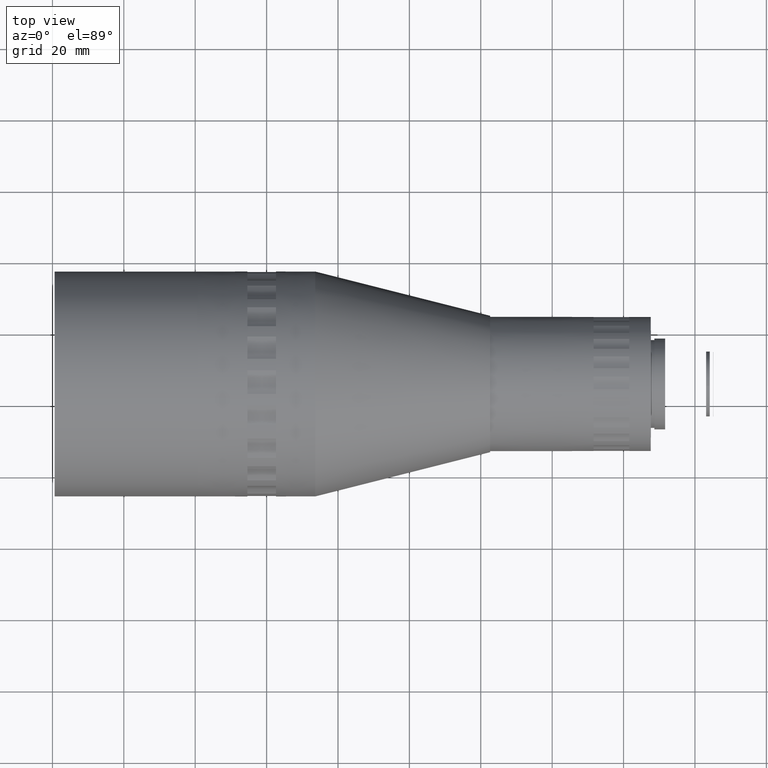
[diagram: clean part render]
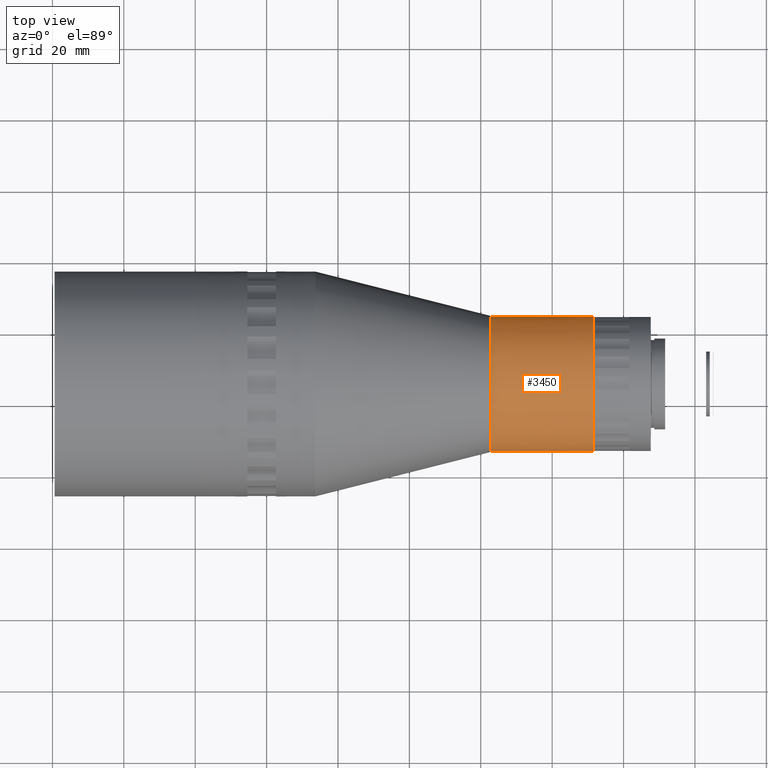
[diagram: same view with one face highlighted and labeled with its STEP entity id]
A machine part, top view. The second image highlights one B-rep face of the part: STEP entity #3450.
In plain terms, the highlighted conical surface has half-angle 0.025 deg.
Its self-contained STEP definition (entity closure, byte-faithful):
#181 = AXIS2_PLACEMENT_3D ( 'NONE', #2191, #3624, #1511 ) ;
#319 = ORIENTED_EDGE ( 'NONE', *, *, #2730, .F. ) ;
#472 = EDGE_LOOP ( 'NONE', ( #319 ) ) ;
#514 = CARTESIAN_POINT ( 'NONE',  ( 91.60730999507811134, -13.07537089778911366, -0.6039616615827261281 ) ) ;
#674 = CARTESIAN_POINT ( 'NONE',  ( 91.60730999507811134, 5.711987127917018015, -0.6039616615827261281 ) ) ;
#832 = FACE_OUTER_BOUND ( 'NONE', #472, .T. ) ;
#1158 = AXIS2_PLACEMENT_3D ( 'NONE', #4099, #3681, #1909 ) ;
#1511 = DIRECTION ( 'NONE',  ( 0.000000000000000000, -1.000000000000000000, 0.000000000000000000 ) ) ;
#1551 = EDGE_LOOP ( 'NONE', ( #3384 ) ) ;
#1909 = DIRECTION ( 'NONE',  ( 0.000000000000000000, -1.000000000000000000, 0.000000000000000000 ) ) ;
#1977 = VERTEX_POINT ( 'NONE', #3714 ) ;
#2191 = CARTESIAN_POINT ( 'NONE',  ( 62.63093621955190571, 5.711987127917014462, -0.6039616615827261281 ) ) ;
#2195 = CIRCLE ( 'NONE', #181, 18.79999999999999716 ) ;
#2283 = VERTEX_POINT ( 'NONE', #514 ) ;
#2676 = FACE_BOUND ( 'NONE', #1551, .T. ) ;
#2730 = EDGE_CURVE ( 'NONE', #1977, #1977, #2195, .T. ) ;
#2953 = CIRCLE ( 'NONE', #4075, 18.78735802570613345 ) ;
#3384 = ORIENTED_EDGE ( 'NONE', *, *, #4007, .T. ) ;
#3450 = ADVANCED_FACE ( 'NONE', ( #2676, #832 ), #4072, .T. ) ;
#3624 = DIRECTION ( 'NONE',  ( -1.000000000000000000, -1.226679102604723662E-16, -0.000000000000000000 ) ) ;
#3681 = DIRECTION ( 'NONE',  ( -1.000000000000000000, -1.226679102604723662E-16, -0.000000000000000000 ) ) ;
#3714 = CARTESIAN_POINT ( 'NONE',  ( 62.63093621955190571, -13.08801287208298092, -0.6039616615827261281 ) ) ;
#4007 = EDGE_CURVE ( 'NONE', #2283, #2283, #2953, .T. ) ;
#4072 = CONICAL_SURFACE ( 'NONE', #1158, 18.79999999999999716, 0.0004362855611157774463 ) ;
#4075 = AXIS2_PLACEMENT_3D ( 'NONE', #674, #4581, #4281 ) ;
#4099 = CARTESIAN_POINT ( 'NONE',  ( 62.63093621955190571, 5.711987127917014462, -0.6039616615827261281 ) ) ;
#4281 = DIRECTION ( 'NONE',  ( 0.000000000000000000, -1.000000000000000000, 0.000000000000000000 ) ) ;
#4581 = DIRECTION ( 'NONE',  ( -1.000000000000000000, -1.226679102604723662E-16, -0.000000000000000000 ) ) ;